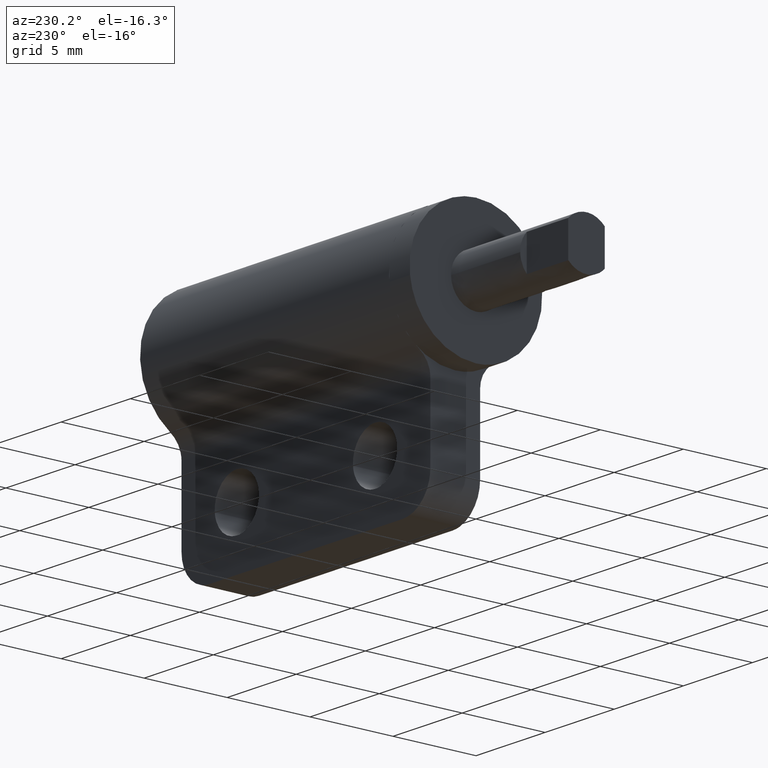
[diagram: clean part render]
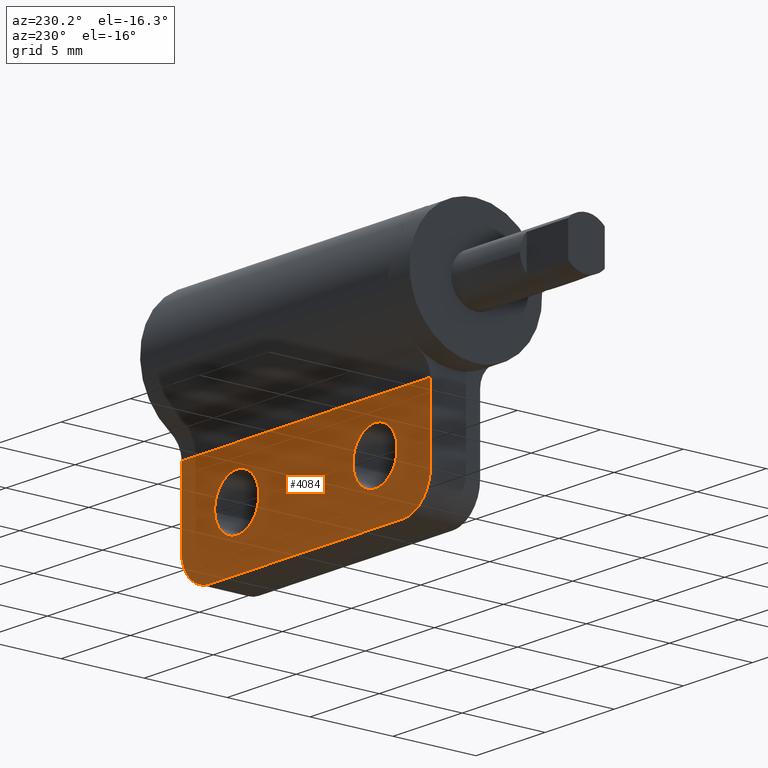
[diagram: same view with one face highlighted and labeled with its STEP entity id]
A machine part, auxiliary view. The second image highlights one B-rep face of the part: STEP entity #4084.
In plain terms, the highlighted face is a freeform B-spline surface patch.
Its self-contained STEP definition (entity closure, byte-faithful):
#3137=CARTESIAN_POINT('',(-22.095067733971302,1.500000000000055,7.625534553186384));
#3138=VERTEX_POINT('',#3137);
#3144=CARTESIAN_POINT('',(-20.500000000000000,1.500000000000055,9.100000000000110));
#3145=VERTEX_POINT('',#3144);
#3146=CARTESIAN_POINT('',(-20.500000000000000,1.500000000000055,9.100000000000110));
#3147=CARTESIAN_POINT('',(-21.979024786612726,1.500000000000056,9.100000000000110));
#3148=CARTESIAN_POINT('',(-22.095067733971302,1.500000000000056,7.625534553186385));
#3156=(BOUNDED_CURVE()B_SPLINE_CURVE(2,(#3146,#3147,#3148),.UNSPECIFIED.,.F.,.U.)B_SPLINE_CURVE_WITH_KNOTS((3,3),(0.0,0.236331300628098),.UNSPECIFIED.)CURVE()GEOMETRIC_REPRESENTATION_ITEM()RATIONAL_B_SPLINE_CURVE((1.0,0.723120658610667,0.969723356162072))REPRESENTATION_ITEM(''));
#3157=EDGE_CURVE('',#3145,#3138,#3156,.T.);
#3159=CARTESIAN_POINT('',(-18.904932266028698,1.500000000000055,7.374465446813836));
#3160=VERTEX_POINT('',#3159);
#3161=CARTESIAN_POINT('',(-18.904932266028705,1.500000000000055,7.374465446813836));
#3162=CARTESIAN_POINT('',(-18.900000000000002,1.500000000000054,7.437135828766016));
#3163=CARTESIAN_POINT('',(-18.899999999999999,1.500000000000055,7.500000000000110));
#3164=CARTESIAN_POINT('',(-18.900000000000002,1.500000000000055,9.100000000000110));
#3165=CARTESIAN_POINT('',(-20.500000000000000,1.500000000000055,9.100000000000110));
#3173=(BOUNDED_CURVE()B_SPLINE_CURVE(2,(#3161,#3162,#3163,#3164,#3165),.UNSPECIFIED.,.F.,.U.)B_SPLINE_CURVE_WITH_KNOTS((3,2,3),(0.736331300628098,0.750000000000000,1.0),.UNSPECIFIED.)CURVE()GEOMETRIC_REPRESENTATION_ITEM()RATIONAL_B_SPLINE_CURVE((0.969723356162072,0.983986122575881,1.0,0.707106781186548,1.0))REPRESENTATION_ITEM(''));
#3174=EDGE_CURVE('',#3160,#3145,#3173,.T.);
#3250=CARTESIAN_POINT('',(-20.500000000000000,1.500000000000055,5.900000000000110));
#3251=VERTEX_POINT('',#3250);
#3252=CARTESIAN_POINT('',(-20.500000000000000,1.500000000000055,5.900000000000110));
#3253=CARTESIAN_POINT('',(-19.020975213387278,1.500000000000056,5.900000000000109));
#3254=CARTESIAN_POINT('',(-18.904932266028702,1.500000000000055,7.374465446813836));
#3262=(BOUNDED_CURVE()B_SPLINE_CURVE(2,(#3252,#3253,#3254),.UNSPECIFIED.,.F.,.U.)B_SPLINE_CURVE_WITH_KNOTS((3,3),(0.500000000000000,0.736331300628099),.UNSPECIFIED.)CURVE()GEOMETRIC_REPRESENTATION_ITEM()RATIONAL_B_SPLINE_CURVE((1.0,0.723120658610666,0.969723356162073))REPRESENTATION_ITEM(''));
#3263=EDGE_CURVE('',#3251,#3160,#3262,.T.);
#3265=CARTESIAN_POINT('',(-22.095067733971295,1.500000000000055,7.625534553186384));
#3266=CARTESIAN_POINT('',(-22.100000000000001,1.500000000000056,7.562864171234204));
#3267=CARTESIAN_POINT('',(-22.100000000000001,1.500000000000055,7.500000000000110));
#3268=CARTESIAN_POINT('',(-22.099999999999998,1.500000000000055,5.900000000000109));
#3269=CARTESIAN_POINT('',(-20.500000000000000,1.500000000000055,5.900000000000110));
#3277=(BOUNDED_CURVE()B_SPLINE_CURVE(2,(#3265,#3266,#3267,#3268,#3269),.UNSPECIFIED.,.F.,.U.)B_SPLINE_CURVE_WITH_KNOTS((3,2,3),(0.236331300628098,0.250000000000000,0.500000000000000),.UNSPECIFIED.)CURVE()GEOMETRIC_REPRESENTATION_ITEM()RATIONAL_B_SPLINE_CURVE((0.969723356162072,0.983986122575881,1.0,0.707106781186548,1.0))REPRESENTATION_ITEM(''));
#3278=EDGE_CURVE('',#3138,#3251,#3277,.T.);
#3319=CARTESIAN_POINT('',(-12.095067733971300,1.500000000000055,7.625534553186384));
#3320=VERTEX_POINT('',#3319);
#3326=CARTESIAN_POINT('',(-10.500000000000000,1.500000000000055,9.100000000000110));
#3327=VERTEX_POINT('',#3326);
#3328=CARTESIAN_POINT('',(-10.500000000000000,1.500000000000055,9.100000000000110));
#3329=CARTESIAN_POINT('',(-11.979024786612724,1.500000000000056,9.100000000000110));
#3330=CARTESIAN_POINT('',(-12.095067733971293,1.500000000000056,7.625534553186385));
#3338=(BOUNDED_CURVE()B_SPLINE_CURVE(2,(#3328,#3329,#3330),.UNSPECIFIED.,.F.,.U.)B_SPLINE_CURVE_WITH_KNOTS((3,3),(0.0,0.236331300628098),.UNSPECIFIED.)CURVE()GEOMETRIC_REPRESENTATION_ITEM()RATIONAL_B_SPLINE_CURVE((1.0,0.723120658610667,0.969723356162072))REPRESENTATION_ITEM(''));
#3339=EDGE_CURVE('',#3327,#3320,#3338,.T.);
#3341=CARTESIAN_POINT('',(-8.904932266028705,1.500000000000055,7.374465446813836));
#3342=VERTEX_POINT('',#3341);
#3343=CARTESIAN_POINT('',(-8.904932266028705,1.500000000000056,7.374465446813836));
#3344=CARTESIAN_POINT('',(-8.900000000000000,1.500000000000055,7.437135828766016));
#3345=CARTESIAN_POINT('',(-8.900000000000000,1.500000000000055,7.500000000000110));
#3346=CARTESIAN_POINT('',(-8.900000000000002,1.500000000000055,9.100000000000110));
#3347=CARTESIAN_POINT('',(-10.500000000000000,1.500000000000055,9.100000000000110));
#3355=(BOUNDED_CURVE()B_SPLINE_CURVE(2,(#3343,#3344,#3345,#3346,#3347),.UNSPECIFIED.,.F.,.U.)B_SPLINE_CURVE_WITH_KNOTS((3,2,3),(0.736331300628098,0.750000000000000,1.0),.UNSPECIFIED.)CURVE()GEOMETRIC_REPRESENTATION_ITEM()RATIONAL_B_SPLINE_CURVE((0.969723356162072,0.983986122575881,1.0,0.707106781186548,1.0))REPRESENTATION_ITEM(''));
#3356=EDGE_CURVE('',#3342,#3327,#3355,.T.);
#3432=CARTESIAN_POINT('',(-10.500000000000000,1.500000000000055,5.900000000000110));
#3433=VERTEX_POINT('',#3432);
#3434=CARTESIAN_POINT('',(-10.500000000000000,1.500000000000055,5.900000000000110));
#3435=CARTESIAN_POINT('',(-9.020975213387272,1.500000000000056,5.900000000000109));
#3436=CARTESIAN_POINT('',(-8.904932266028705,1.500000000000055,7.374465446813836));
#3444=(BOUNDED_CURVE()B_SPLINE_CURVE(2,(#3434,#3435,#3436),.UNSPECIFIED.,.F.,.U.)B_SPLINE_CURVE_WITH_KNOTS((3,3),(0.500000000000000,0.736331300628099),.UNSPECIFIED.)CURVE()GEOMETRIC_REPRESENTATION_ITEM()RATIONAL_B_SPLINE_CURVE((1.0,0.723120658610666,0.969723356162073))REPRESENTATION_ITEM(''));
#3445=EDGE_CURVE('',#3433,#3342,#3444,.T.);
#3447=CARTESIAN_POINT('',(-12.095067733971295,1.500000000000055,7.625534553186384));
#3448=CARTESIAN_POINT('',(-12.100000000000000,1.500000000000056,7.562864171234204));
#3449=CARTESIAN_POINT('',(-12.100000000000000,1.500000000000055,7.500000000000110));
#3450=CARTESIAN_POINT('',(-12.099999999999998,1.500000000000055,5.900000000000109));
#3451=CARTESIAN_POINT('',(-10.500000000000000,1.500000000000055,5.900000000000110));
#3459=(BOUNDED_CURVE()B_SPLINE_CURVE(2,(#3447,#3448,#3449,#3450,#3451),.UNSPECIFIED.,.F.,.U.)B_SPLINE_CURVE_WITH_KNOTS((3,2,3),(0.236331300628098,0.250000000000000,0.500000000000000),.UNSPECIFIED.)CURVE()GEOMETRIC_REPRESENTATION_ITEM()RATIONAL_B_SPLINE_CURVE((0.969723356162072,0.983986122575881,1.0,0.707106781186548,1.0))REPRESENTATION_ITEM(''));
#3460=EDGE_CURVE('',#3320,#3433,#3459,.T.);
#3679=CARTESIAN_POINT('',(-6.500000000000000,1.500000000000000,9.000000000051420));
#3680=VERTEX_POINT('',#3679);
#3686=CARTESIAN_POINT('',(-8.500000000000000,1.500000000000000,11.000000000051420));
#3687=VERTEX_POINT('',#3686);
#3688=CARTESIAN_POINT('',(-8.500000000000000,1.500000000000000,11.000000000051420));
#3689=CARTESIAN_POINT('',(-6.500000000000003,1.500000000000000,11.000000000051420));
#3690=CARTESIAN_POINT('',(-6.500000000000001,1.500000000000000,9.000000000051420));
#3698=(BOUNDED_CURVE()B_SPLINE_CURVE(2,(#3688,#3689,#3690),.UNSPECIFIED.,.F.,.U.)CURVE()GEOMETRIC_REPRESENTATION_ITEM()QUASI_UNIFORM_CURVE()RATIONAL_B_SPLINE_CURVE((1.0,0.707106781186548,1.0))REPRESENTATION_ITEM(''));
#3699=EDGE_CURVE('',#3687,#3680,#3698,.T.);
#3740=CARTESIAN_POINT('',(-22.500000000000000,1.500000000000000,11.000000000051420));
#3741=VERTEX_POINT('',#3740);
#3747=CARTESIAN_POINT('',(-24.500000000000000,1.500000000000000,9.000000000051420));
#3748=VERTEX_POINT('',#3747);
#3749=CARTESIAN_POINT('',(-24.500000000000000,1.500000000000000,9.000000000051420));
#3750=CARTESIAN_POINT('',(-24.500000000000004,1.500000000000000,11.000000000051420));
#3751=CARTESIAN_POINT('',(-22.500000000000000,1.500000000000000,11.000000000051420));
#3759=(BOUNDED_CURVE()B_SPLINE_CURVE(2,(#3749,#3750,#3751),.UNSPECIFIED.,.F.,.U.)CURVE()GEOMETRIC_REPRESENTATION_ITEM()QUASI_UNIFORM_CURVE()RATIONAL_B_SPLINE_CURVE((1.0,0.707106781186548,1.0))REPRESENTATION_ITEM(''));
#3760=EDGE_CURVE('',#3748,#3741,#3759,.T.);
#3918=CARTESIAN_POINT('',(-24.500000000000000,1.500000000000000,4.609772228646310));
#3919=VERTEX_POINT('',#3918);
#3933=CARTESIAN_POINT('',(-6.500000000000000,1.500000000000000,4.609772228646310));
#3934=VERTEX_POINT('',#3933);
#3935=CARTESIAN_POINT('',(-6.500000000000000,1.500000000000000,4.609772228646310));
#3936=CARTESIAN_POINT('',(-24.500000000000000,1.500000000000000,4.609772228646310));
#3937=QUASI_UNIFORM_CURVE('',1,(#3935,#3936),.UNSPECIFIED.,.F.,.U.);
#3938=EDGE_CURVE('',#3934,#3919,#3937,.T.);
#3962=CARTESIAN_POINT('',(-8.500000000000000,1.500000000000000,11.000000000051420));
#3963=CARTESIAN_POINT('',(-22.500000000000000,1.500000000000000,11.000000000051420));
#3964=QUASI_UNIFORM_CURVE('',1,(#3962,#3963),.UNSPECIFIED.,.F.,.U.);
#3965=EDGE_CURVE('',#3687,#3741,#3964,.T.);
#3988=CARTESIAN_POINT('',(-24.500000000000000,1.500000000000000,9.000000000051420));
#3989=CARTESIAN_POINT('',(-24.500000000000000,1.500000000000000,4.609772228646310));
#3990=QUASI_UNIFORM_CURVE('',1,(#3988,#3989),.UNSPECIFIED.,.F.,.U.);
#3991=EDGE_CURVE('',#3748,#3919,#3990,.T.);
#4010=CARTESIAN_POINT('',(-6.500000000000000,1.500000000000000,9.000000000051420));
#4011=CARTESIAN_POINT('',(-6.500000000000000,1.500000000000000,4.609772228646310));
#4012=QUASI_UNIFORM_CURVE('',1,(#4010,#4011),.UNSPECIFIED.,.F.,.U.);
#4013=EDGE_CURVE('',#3680,#3934,#4012,.T.);
#4059=CARTESIAN_POINT('',(-25.399099965112509,1.500000000000000,4.290580303863239));
#4060=CARTESIAN_POINT('',(-25.399099965112509,1.500000000000000,11.319192039100670));
#4061=CARTESIAN_POINT('',(-5.600899552089871,1.500000000000000,4.290580303863240));
#4062=CARTESIAN_POINT('',(-5.600899552089871,1.500000000000000,11.319192039100670));
#4063=B_SPLINE_SURFACE_WITH_KNOTS('',1,1,((#4059,#4061),(#4060,#4062)),.UNSPECIFIED.,.F.,.F.,.U.,(2,2),(2,2),(0.0,7.028611735237428),(0.0,19.798200413022631),.UNSPECIFIED.);
#4064=ORIENTED_EDGE('',*,*,#3991,.F.);
#4065=ORIENTED_EDGE('',*,*,#3760,.T.);
#4066=ORIENTED_EDGE('',*,*,#3965,.F.);
#4067=ORIENTED_EDGE('',*,*,#3699,.T.);
#4068=ORIENTED_EDGE('',*,*,#4013,.T.);
#4069=ORIENTED_EDGE('',*,*,#3938,.T.);
#4070=EDGE_LOOP('',(#4064,#4065,#4066,#4067,#4068,#4069));
#4071=FACE_OUTER_BOUND('',#4070,.T.);
#4072=ORIENTED_EDGE('',*,*,#3445,.T.);
#4073=ORIENTED_EDGE('',*,*,#3356,.T.);
#4074=ORIENTED_EDGE('',*,*,#3339,.T.);
#4075=ORIENTED_EDGE('',*,*,#3460,.T.);
#4076=EDGE_LOOP('',(#4072,#4073,#4074,#4075));
#4077=FACE_BOUND('',#4076,.T.);
#4078=ORIENTED_EDGE('',*,*,#3263,.T.);
#4079=ORIENTED_EDGE('',*,*,#3174,.T.);
#4080=ORIENTED_EDGE('',*,*,#3157,.T.);
#4081=ORIENTED_EDGE('',*,*,#3278,.T.);
#4082=EDGE_LOOP('',(#4078,#4079,#4080,#4081));
#4083=FACE_BOUND('',#4082,.T.);
#4084=ADVANCED_FACE('',(#4071,#4077,#4083),#4063,.T.);